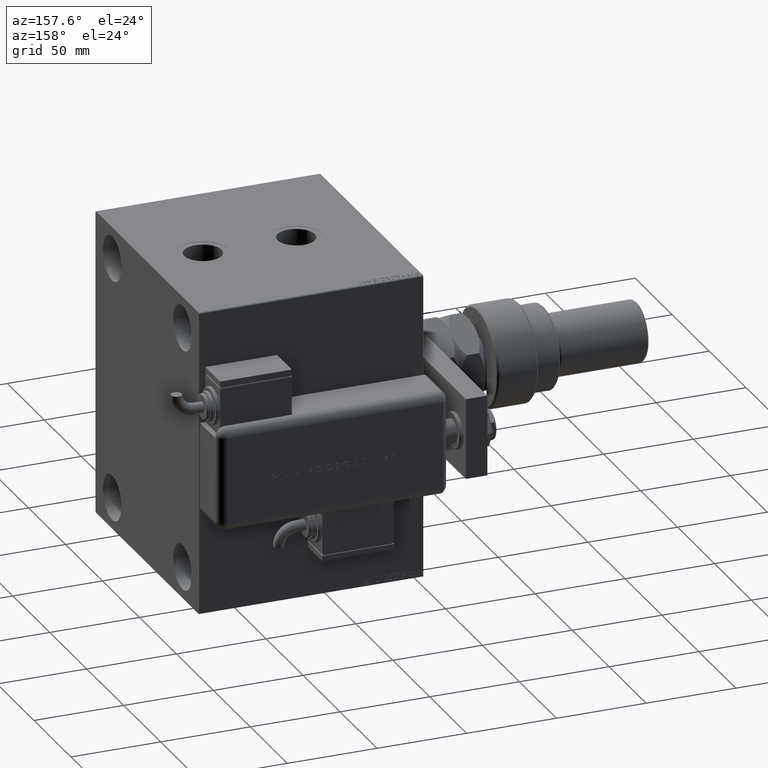
[diagram: clean part render]
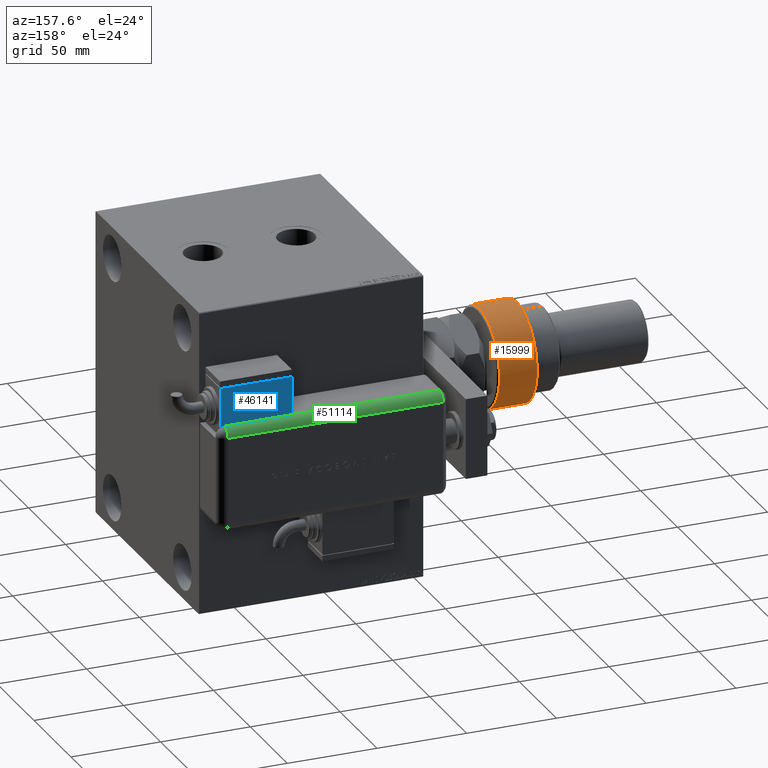
[diagram: same view with three faces highlighted in distinct colors, each labeled with its STEP entity id]
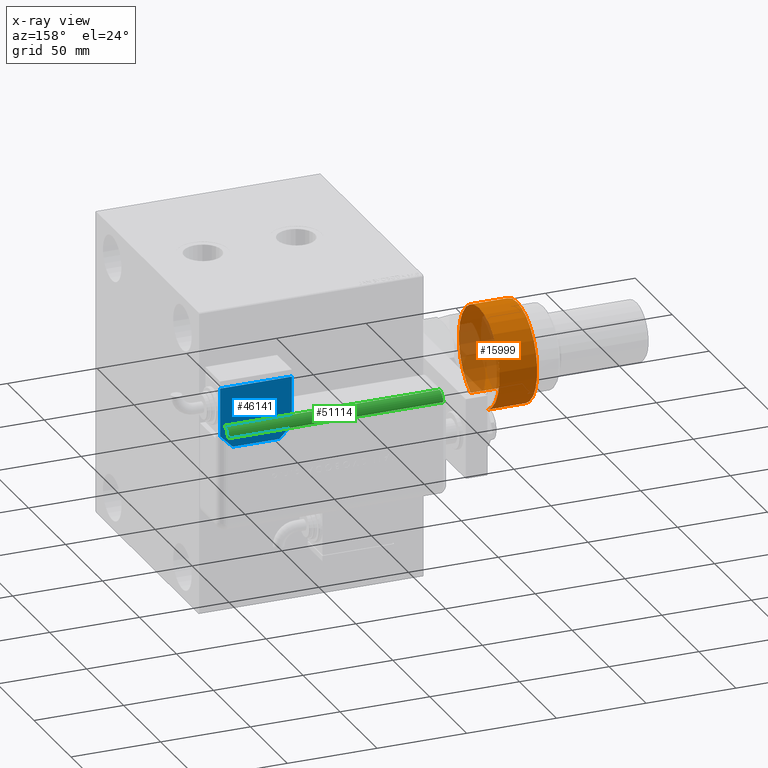
[diagram: x-ray of the same camera — body ghosted, the three highlighted faces saturated]
A machine part, auxiliary view with three faces highlighted in distinct colors.
The next image is the same camera in x-ray (body ghosted, the three faces saturated) — at least one of them is partly hidden behind the body in this view.
Their STEP definitions:

[orange] entity #15999 — the highlighted cylindrical surface (partial cylindrical patch) has radius 27.5 mm, axis along (1, -0, -0).
#2237 = CIRCLE ( 'NONE', #7338, 27.50000000000000000 ) ;
#3912 = DIRECTION ( 'NONE',  ( -0.000000000000000000, -0.000000000000000000, -1.000000000000000000 ) ) ;
#5445 = CIRCLE ( 'NONE', #57100, 27.50000000000000000 ) ;
#6004 = DIRECTION ( 'NONE',  ( -0.000000000000000000, -0.000000000000000000, 1.000000000000000000 ) ) ;
#7338 = AXIS2_PLACEMENT_3D ( 'NONE', #30421, #6004, #44681 ) ;
#10406 = CIRCLE ( 'NONE', #56991, 27.50000000000000000 ) ;
#10506 = ORIENTED_EDGE ( 'NONE', *, *, #56742, .T. ) ;
#10521 = FACE_OUTER_BOUND ( 'NONE', #35982, .T. ) ;
#11878 = CARTESIAN_POINT ( 'NONE',  ( -24.97999199359359324, 11.50000000000000000, 1.000000000000000888 ) ) ;
#15287 = CYLINDRICAL_SURFACE ( 'NONE', #37653, 27.50000000000000000 ) ;
#15999 = ADVANCED_FACE ( 'NONE', ( #10521 ), #15287, .T. ) ;
#16511 = CARTESIAN_POINT ( 'NONE',  ( 27.50000000000000000, 0.000000000000000000, 1.000000000000000888 ) ) ;
#18030 = EDGE_CURVE ( 'NONE', #59822, #32678, #2237, .T. ) ;
#20038 = CARTESIAN_POINT ( 'NONE',  ( 0.000000000000000000, 0.000000000000000000, 23.00000000000000000 ) ) ;
#20427 = VERTEX_POINT ( 'NONE', #56034 ) ;
#24828 = VECTOR ( 'NONE', #37967, 1000.000000000000000 ) ;
#28007 = ORIENTED_EDGE ( 'NONE', *, *, #50772, .F. ) ;
#28008 = DIRECTION ( 'NONE',  ( 1.000000000000000000, 0.000000000000000000, 0.000000000000000000 ) ) ;
#28028 = LINE ( 'NONE', #47358, #56841 ) ;
#28947 = DIRECTION ( 'NONE',  ( -0.000000000000000000, -0.000000000000000000, -1.000000000000000000 ) ) ;
#29256 = DIRECTION ( 'NONE',  ( -1.000000000000000000, 0.000000000000000000, 0.000000000000000000 ) ) ;
#29404 = VERTEX_POINT ( 'NONE', #48616 ) ;
#30421 = CARTESIAN_POINT ( 'NONE',  ( 0.000000000000000000, 0.000000000000000000, 1.000000000000000888 ) ) ;
#30457 = ORIENTED_EDGE ( 'NONE', *, *, #59812, .T. ) ;
#31672 = ORIENTED_EDGE ( 'NONE', *, *, #18030, .T. ) ;
#32282 = CARTESIAN_POINT ( 'NONE',  ( 0.000000000000000000, 0.000000000000000000, 22.00000000000003908 ) ) ;
#32678 = VERTEX_POINT ( 'NONE', #16511 ) ;
#35982 = EDGE_LOOP ( 'NONE', ( #28007, #10506, #30457, #31672, #37192 ) ) ;
#37192 = ORIENTED_EDGE ( 'NONE', *, *, #44655, .T. ) ;
#37653 = AXIS2_PLACEMENT_3D ( 'NONE', #20038, #28947, #29256 ) ;
#37967 = DIRECTION ( 'NONE',  ( -0.000000000000000000, -0.000000000000000000, -1.000000000000000000 ) ) ;
#41488 = CARTESIAN_POINT ( 'NONE',  ( -24.97999199359358968, -11.50000000000000888, 27.50000000000000000 ) ) ;
#42721 = DIRECTION ( 'NONE',  ( 0.000000000000000000, 0.000000000000000000, -1.000000000000000000 ) ) ;
#44655 = EDGE_CURVE ( 'NONE', #32678, #54054, #10406, .T. ) ;
#44681 = DIRECTION ( 'NONE',  ( 1.000000000000000000, 0.000000000000000000, 0.000000000000000000 ) ) ;
#46246 = LINE ( 'NONE', #41488, #24828 ) ;
#47358 = CARTESIAN_POINT ( 'NONE',  ( -24.97999199359359324, 11.50000000000000000, 27.50000000000000000 ) ) ;
#48277 = DIRECTION ( 'NONE',  ( -0.000000000000000000, -0.000000000000000000, 1.000000000000000000 ) ) ;
#48616 = CARTESIAN_POINT ( 'NONE',  ( -24.97999199359358968, -11.50000000000000888, 22.00000000000003908 ) ) ;
#50772 = EDGE_CURVE ( 'NONE', #20427, #54054, #28028, .T. ) ;
#52229 = DIRECTION ( 'NONE',  ( 1.000000000000000000, 0.000000000000000000, 0.000000000000000000 ) ) ;
#54054 = VERTEX_POINT ( 'NONE', #11878 ) ;
#56034 = CARTESIAN_POINT ( 'NONE',  ( -24.97999199359359324, 11.50000000000000000, 22.00000000000003908 ) ) ;
#56742 = EDGE_CURVE ( 'NONE', #20427, #29404, #5445, .T. ) ;
#56841 = VECTOR ( 'NONE', #3912, 1000.000000000000000 ) ;
#56991 = AXIS2_PLACEMENT_3D ( 'NONE', #57800, #48277, #28008 ) ;
#57100 = AXIS2_PLACEMENT_3D ( 'NONE', #32282, #42721, #52229 ) ;
#57315 = CARTESIAN_POINT ( 'NONE',  ( -24.97999199359358968, -11.50000000000000888, 1.000000000000000888 ) ) ;
#57800 = CARTESIAN_POINT ( 'NONE',  ( 0.000000000000000000, 0.000000000000000000, 1.000000000000000888 ) ) ;
#59812 = EDGE_CURVE ( 'NONE', #29404, #59822, #46246, .T. ) ;
#59822 = VERTEX_POINT ( 'NONE', #57315 ) ;

[blue] entity #46141 — the highlighted planar face has unit normal (0, -1, 0).
#404 = CARTESIAN_POINT ( 'NONE',  ( -19.99999999999994316, -13.49999999999996092, -10.00000000000000000 ) ) ;
#2591 = CARTESIAN_POINT ( 'NONE',  ( 20.00000000000005329, -13.49999999999996092, -10.00000000000000000 ) ) ;
#3719 = CARTESIAN_POINT ( 'NONE',  ( 20.00000000000005329, -13.49999999999996092, -10.00000000000000000 ) ) ;
#4106 = LINE ( 'NONE', #43111, #60136 ) ;
#5075 = DIRECTION ( 'NONE',  ( 0.000000000000000000, 0.000000000000000000, 1.000000000000000000 ) ) ;
#5148 = VERTEX_POINT ( 'NONE', #25910 ) ;
#5814 = EDGE_CURVE ( 'NONE', #56762, #5148, #55881, .T. ) ;
#6868 = DIRECTION ( 'NONE',  ( -1.284980352575421081E-16, -1.000000000000000000, -0.000000000000000000 ) ) ;
#10306 = VECTOR ( 'NONE', #6868, 1000.000000000000000 ) ;
#12052 = CARTESIAN_POINT ( 'NONE',  ( -19.99999999999994316, -13.49999999999996092, -10.00000000000000000 ) ) ;
#13370 = DIRECTION ( 'NONE',  ( -0.7071067811865479058, 0.7071067811865470176, -0.000000000000000000 ) ) ;
#14117 = VECTOR ( 'NONE', #46054, 1000.000000000000000 ) ;
#15833 = VERTEX_POINT ( 'NONE', #57483 ) ;
#16617 = EDGE_CURVE ( 'NONE', #41325, #15833, #59195, .T. ) ;
#17848 = CARTESIAN_POINT ( 'NONE',  ( -12.99999999999994138, 20.50000000000009592, -10.00000000000000000 ) ) ;
#18134 = CARTESIAN_POINT ( 'NONE',  ( 9.999999999999984013, 23.50000000000009592, -10.00000000000000000 ) ) ;
#20521 = VERTEX_POINT ( 'NONE', #53143 ) ;
#20699 = AXIS2_PLACEMENT_3D ( 'NONE', #39928, #5075, #39621 ) ;
#21289 = EDGE_CURVE ( 'NONE', #15833, #56762, #55487, .T. ) ;
#21452 = CARTESIAN_POINT ( 'NONE',  ( -19.99999999999994316, -13.49999999999996092, -10.00000000000000000 ) ) ;
#22605 = VERTEX_POINT ( 'NONE', #17848 ) ;
#23875 = VECTOR ( 'NONE', #13370, 1000.000000000000114 ) ;
#24035 = ORIENTED_EDGE ( 'NONE', *, *, #61452, .F. ) ;
#25910 = CARTESIAN_POINT ( 'NONE',  ( 20.00000000000005684, 13.50000000000003730, -10.00000000000000000 ) ) ;
#28478 = CARTESIAN_POINT ( 'NONE',  ( -19.99999999999993960, 13.49999999999986500, -10.00000000000000000 ) ) ;
#30111 = FACE_OUTER_BOUND ( 'NONE', #62016, .T. ) ;
#31567 = VECTOR ( 'NONE', #42712, 1000.000000000000000 ) ;
#32353 = EDGE_CURVE ( 'NONE', #49363, #41325, #34976, .T. ) ;
#32896 = CARTESIAN_POINT ( 'NONE',  ( -19.99999999999993960, 13.49999999999986500, -10.00000000000000000 ) ) ;
#34976 = LINE ( 'NONE', #404, #53546 ) ;
#38811 = DIRECTION ( 'NONE',  ( -1.284980352575421081E-16, -1.000000000000000000, -0.000000000000000000 ) ) ;
#39621 = DIRECTION ( 'NONE',  ( 1.000000000000000000, 0.000000000000000000, -0.000000000000000000 ) ) ;
#39928 = CARTESIAN_POINT ( 'NONE',  ( 0.000000000000000000, 0.000000000000000000, -10.00000000000000000 ) ) ;
#41325 = VERTEX_POINT ( 'NONE', #58305 ) ;
#42435 = EDGE_CURVE ( 'NONE', #22605, #49363, #60822, .T. ) ;
#42712 = DIRECTION ( 'NONE',  ( -0.7071067811865356934, -0.7071067811865593411, -0.000000000000000000 ) ) ;
#43111 = CARTESIAN_POINT ( 'NONE',  ( 0.000000000000000000, 20.50000000000009592, -10.00000000000000000 ) ) ;
#46054 = DIRECTION ( 'NONE',  ( 1.284980352575412699E-16, 1.000000000000000000, 0.000000000000000000 ) ) ;
#46141 = ADVANCED_FACE ( 'NONE', ( #30111 ), #49442, .F. ) ;
#47636 = ORIENTED_EDGE ( 'NONE', *, *, #21289, .F. ) ;
#48426 = ORIENTED_EDGE ( 'NONE', *, *, #5814, .F. ) ;
#48436 = ORIENTED_EDGE ( 'NONE', *, *, #16617, .F. ) ;
#49363 = VERTEX_POINT ( 'NONE', #28478 ) ;
#49442 = PLANE ( 'NONE',  #20699 ) ;
#50740 = DIRECTION ( 'NONE',  ( 1.000000000000000000, 0.000000000000000000, 0.000000000000000000 ) ) ;
#50990 = ORIENTED_EDGE ( 'NONE', *, *, #42435, .F. ) ;
#51190 = ORIENTED_EDGE ( 'NONE', *, *, #32353, .F. ) ;
#51420 = ORIENTED_EDGE ( 'NONE', *, *, #56528, .T. ) ;
#53143 = CARTESIAN_POINT ( 'NONE',  ( 12.99999999999999112, 20.50000000000009592, -10.00000000000000000 ) ) ;
#53546 = VECTOR ( 'NONE', #38811, 1000.000000000000000 ) ;
#55487 = LINE ( 'NONE', #12052, #59173 ) ;
#55881 = LINE ( 'NONE', #2591, #14117 ) ;
#56189 = LINE ( 'NONE', #18134, #23875 ) ;
#56528 = EDGE_CURVE ( 'NONE', #22605, #20521, #4106, .T. ) ;
#56762 = VERTEX_POINT ( 'NONE', #3719 ) ;
#57483 = CARTESIAN_POINT ( 'NONE',  ( -19.99999999999994316, -13.49999999999996092, -10.00000000000000000 ) ) ;
#58305 = CARTESIAN_POINT ( 'NONE',  ( -19.99999999999993960, 2.569960705150834076E-15, -9.999999999999996447 ) ) ;
#59173 = VECTOR ( 'NONE', #50740, 1000.000000000000000 ) ;
#59195 = LINE ( 'NONE', #21452, #10306 ) ;
#60136 = VECTOR ( 'NONE', #62140, 1000.000000000000000 ) ;
#60822 = LINE ( 'NONE', #32896, #31567 ) ;
#61452 = EDGE_CURVE ( 'NONE', #5148, #20521, #56189, .T. ) ;
#62016 = EDGE_LOOP ( 'NONE', ( #50990, #51420, #24035, #48426, #47636, #48436, #51190 ) ) ;
#62140 = DIRECTION ( 'NONE',  ( 1.000000000000000000, 0.000000000000000000, 0.000000000000000000 ) ) ;

[green] entity #51114 — the highlighted cylindrical surface (edge-blend (fillet) strip) has radius 5 mm, axis along (1, -0, -0).
#7 = DIRECTION ( 'NONE',  ( -0.000000000000000000, 0.000000000000000000, -1.000000000000000000 ) ) ;
#309 = CARTESIAN_POINT ( 'NONE',  ( 23.99999999999999289, 20.79999999999998295, 125.0000000000000000 ) ) ;
#398 = CARTESIAN_POINT ( 'NONE',  ( 23.99999999999999289, 25.79999999999998295, 5.000000000000004441 ) ) ;
#1114 = EDGE_CURVE ( 'NONE', #36057, #48447, #25028, .T. ) ;
#1399 = LINE ( 'NONE', #25529, #29883 ) ;
#3125 = DIRECTION ( 'NONE',  ( -1.000000000000000000, 0.000000000000000000, 0.000000000000000000 ) ) ;
#6108 = EDGE_CURVE ( 'NONE', #11058, #57006, #30319, .T. ) ;
#8146 = CIRCLE ( 'NONE', #31420, 5.000000000000000888 ) ;
#8747 = CARTESIAN_POINT ( 'NONE',  ( 28.99599839871871154, 20.99999999999999289, 43.00000000000000000 ) ) ;
#9618 = VECTOR ( 'NONE', #58505, 1000.000000000000000 ) ;
#10471 = CYLINDRICAL_SURFACE ( 'NONE', #54829, 5.000000000000000888 ) ;
#10766 = DIRECTION ( 'NONE',  ( -0.000000000000000000, -0.000000000000000000, 1.000000000000000000 ) ) ;
#11058 = VERTEX_POINT ( 'NONE', #8747 ) ;
#11748 = EDGE_CURVE ( 'NONE', #48461, #62463, #8146, .T. ) ;
#13988 = CARTESIAN_POINT ( 'NONE',  ( 23.99999999999999289, 20.79999999999998295, 43.00000000000000000 ) ) ;
#14308 = DIRECTION ( 'NONE',  ( 1.000000000000000000, -6.383782391594648845E-14, 0.000000000000000000 ) ) ;
#15074 = CARTESIAN_POINT ( 'NONE',  ( 28.99999999999999645, 20.79999999999998295, 125.0000000000000000 ) ) ;
#17425 = CARTESIAN_POINT ( 'NONE',  ( 23.99999999999999289, 20.79999999999998295, 125.0000000000000000 ) ) ;
#17943 = ORIENTED_EDGE ( 'NONE', *, *, #23275, .F. ) ;
#20444 = LINE ( 'NONE', #15074, #9618 ) ;
#22169 = DIRECTION ( 'NONE',  ( -0.000000000000000000, -0.000000000000000000, 1.000000000000000000 ) ) ;
#23275 = EDGE_CURVE ( 'NONE', #36057, #11058, #1399, .T. ) ;
#23429 = EDGE_CURVE ( 'NONE', #57006, #48461, #20444, .T. ) ;
#25028 = CIRCLE ( 'NONE', #33140, 5.000000000000000888 ) ;
#25529 = CARTESIAN_POINT ( 'NONE',  ( 28.99599839871871154, 20.99999999999998224, 125.0000000000000000 ) ) ;
#25729 = EDGE_LOOP ( 'NONE', ( #49045, #17943, #38973, #42218, #30412, #58867 ) ) ;
#25839 = DIRECTION ( 'NONE',  ( -0.000000000000000000, -0.000000000000000000, 1.000000000000000000 ) ) ;
#29601 = CARTESIAN_POINT ( 'NONE',  ( 28.99999999999999645, 20.79999999999998295, 125.0000000000000000 ) ) ;
#29883 = VECTOR ( 'NONE', #25839, 1000.000000000000000 ) ;
#30319 = CIRCLE ( 'NONE', #42452, 5.000000000000000888 ) ;
#30371 = VECTOR ( 'NONE', #47377, 1000.000000000000000 ) ;
#30412 = ORIENTED_EDGE ( 'NONE', *, *, #11748, .F. ) ;
#30433 = CARTESIAN_POINT ( 'NONE',  ( 23.99999999999999289, 20.79999999999998295, 5.000000000000004441 ) ) ;
#31067 = DIRECTION ( 'NONE',  ( -1.000000000000000000, 0.000000000000000000, 0.000000000000000000 ) ) ;
#31420 = AXIS2_PLACEMENT_3D ( 'NONE', #17425, #22169, #3125 ) ;
#33140 = AXIS2_PLACEMENT_3D ( 'NONE', #30433, #10766, #31067 ) ;
#33649 = FACE_OUTER_BOUND ( 'NONE', #25729, .T. ) ;
#33950 = DIRECTION ( 'NONE',  ( -1.000000000000000000, 0.000000000000000000, 0.000000000000000000 ) ) ;
#35206 = CARTESIAN_POINT ( 'NONE',  ( 23.99999999999999289, 25.79999999999998295, 125.0000000000000000 ) ) ;
#36057 = VERTEX_POINT ( 'NONE', #51449 ) ;
#37932 = EDGE_CURVE ( 'NONE', #62463, #48447, #52755, .T. ) ;
#38973 = ORIENTED_EDGE ( 'NONE', *, *, #1114, .T. ) ;
#41702 = CARTESIAN_POINT ( 'NONE',  ( 23.99999999999999289, 25.79999999999998295, 125.0000000000000000 ) ) ;
#42218 = ORIENTED_EDGE ( 'NONE', *, *, #37932, .F. ) ;
#42452 = AXIS2_PLACEMENT_3D ( 'NONE', #13988, #7, #14308 ) ;
#45782 = CARTESIAN_POINT ( 'NONE',  ( 28.99999999999999645, 20.79999999999998295, 43.00000000000000000 ) ) ;
#47377 = DIRECTION ( 'NONE',  ( 0.000000000000000000, 0.000000000000000000, -1.000000000000000000 ) ) ;
#48447 = VERTEX_POINT ( 'NONE', #398 ) ;
#48461 = VERTEX_POINT ( 'NONE', #29601 ) ;
#49045 = ORIENTED_EDGE ( 'NONE', *, *, #6108, .F. ) ;
#51114 = ADVANCED_FACE ( 'NONE', ( #33649 ), #10471, .T. ) ;
#51449 = CARTESIAN_POINT ( 'NONE',  ( 28.99599839871871154, 21.00000000000000000, 5.000000000000004441 ) ) ;
#52755 = LINE ( 'NONE', #41702, #30371 ) ;
#54829 = AXIS2_PLACEMENT_3D ( 'NONE', #309, #58986, #33950 ) ;
#57006 = VERTEX_POINT ( 'NONE', #45782 ) ;
#58505 = DIRECTION ( 'NONE',  ( -0.000000000000000000, -0.000000000000000000, 1.000000000000000000 ) ) ;
#58867 = ORIENTED_EDGE ( 'NONE', *, *, #23429, .F. ) ;
#58986 = DIRECTION ( 'NONE',  ( 0.000000000000000000, 0.000000000000000000, -1.000000000000000000 ) ) ;
#62463 = VERTEX_POINT ( 'NONE', #35206 ) ;